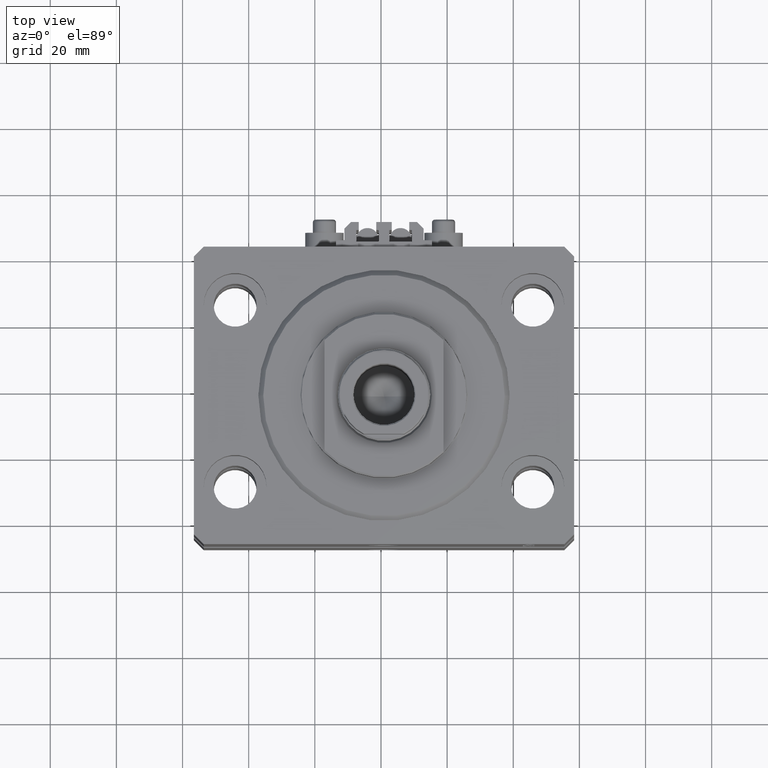
[diagram: clean part render]
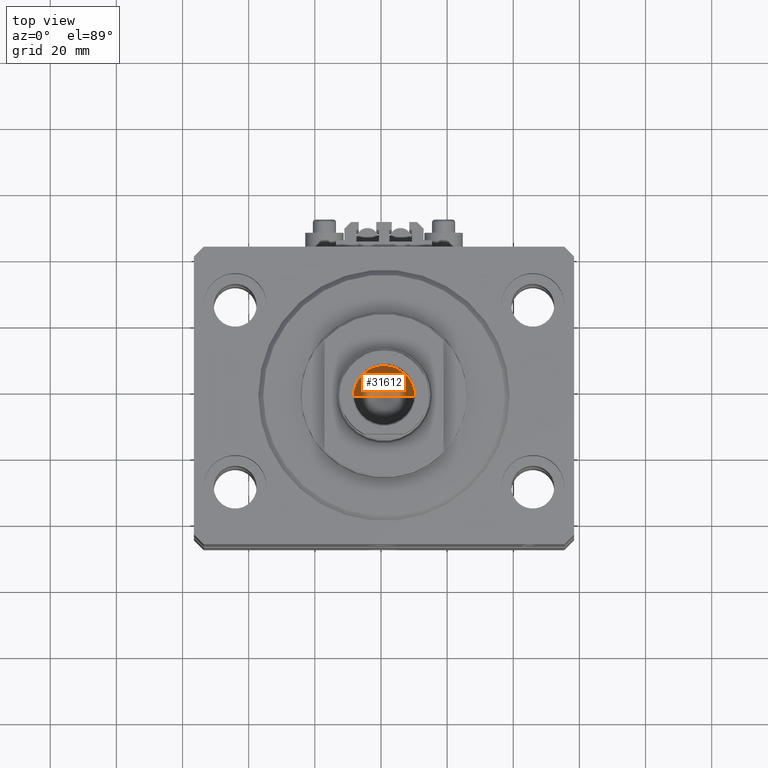
[diagram: same view with one face highlighted and labeled with its STEP entity id]
A machine part, top view. The second image highlights one B-rep face of the part: STEP entity #31612.
In plain terms, the highlighted conical surface has half-angle 59 deg.
Its self-contained STEP definition (entity closure, byte-faithful):
#2848 = VERTEX_POINT ( 'NONE', #23880 ) ;
#6779 = AXIS2_PLACEMENT_3D ( 'NONE', #15147, #30557, #33616 ) ;
#8392 = CIRCLE ( 'NONE', #36676, 9.249999999999994671 ) ;
#9191 = CONICAL_SURFACE ( 'NONE', #6779, 9.249999999999994671, 1.029744258676653423 ) ;
#9334 = VECTOR ( 'NONE', #34368, 1000.000000000000000 ) ;
#10228 = DIRECTION ( 'NONE',  ( 0.8571673007021117785, 0.000000000000000000, 0.5150380749100550437 ) ) ;
#10312 = EDGE_LOOP ( 'NONE', ( #41237, #39677, #10976 ) ) ;
#10976 = ORIENTED_EDGE ( 'NONE', *, *, #32013, .T. ) ;
#11547 = VERTEX_POINT ( 'NONE', #39572 ) ;
#12286 = CARTESIAN_POINT ( 'NONE',  ( 0.000000000000000000, 0.000000000000000000, 72.00000000000001421 ) ) ;
#15147 = CARTESIAN_POINT ( 'NONE',  ( 0.000000000000000000, 0.000000000000000000, 72.00000000000001421 ) ) ;
#15836 = DIRECTION ( 'NONE',  ( 1.000000000000000000, 0.000000000000000000, 0.000000000000000000 ) ) ;
#17387 = EDGE_CURVE ( 'NONE', #41626, #2848, #48928, .T. ) ;
#22234 = FACE_OUTER_BOUND ( 'NONE', #10312, .T. ) ;
#23880 = CARTESIAN_POINT ( 'NONE',  ( 9.249999999999994671, 0.000000000000000000, 72.00000000000001421 ) ) ;
#24792 = VECTOR ( 'NONE', #10228, 1000.000000000000000 ) ;
#24988 = CARTESIAN_POINT ( 'NONE',  ( -1.046994375366439223E-14, 0.000000000000000000, 66.44203927399506426 ) ) ;
#29430 = CARTESIAN_POINT ( 'NONE',  ( 9.249999999999994671, 0.000000000000000000, 72.00000000000001421 ) ) ;
#30557 = DIRECTION ( 'NONE',  ( -0.000000000000000000, -0.000000000000000000, 1.000000000000000000 ) ) ;
#31001 = DIRECTION ( 'NONE',  ( -0.000000000000000000, -0.000000000000000000, 1.000000000000000000 ) ) ;
#31612 = ADVANCED_FACE ( 'NONE', ( #22234 ), #9191, .F. ) ;
#32013 = EDGE_CURVE ( 'NONE', #2848, #11547, #8392, .T. ) ;
#33616 = DIRECTION ( 'NONE',  ( 1.000000000000000000, 0.000000000000000000, 0.000000000000000000 ) ) ;
#34116 = LINE ( 'NONE', #49561, #9334 ) ;
#34368 = DIRECTION ( 'NONE',  ( -0.8571673007021117785, 1.049727191138617956E-16, 0.5150380749100550437 ) ) ;
#35532 = EDGE_CURVE ( 'NONE', #41626, #11547, #34116, .T. ) ;
#36676 = AXIS2_PLACEMENT_3D ( 'NONE', #12286, #31001, #15836 ) ;
#39572 = CARTESIAN_POINT ( 'NONE',  ( -9.249999999999994671, 1.132798289211300909E-15, 72.00000000000001421 ) ) ;
#39677 = ORIENTED_EDGE ( 'NONE', *, *, #17387, .T. ) ;
#41237 = ORIENTED_EDGE ( 'NONE', *, *, #35532, .F. ) ;
#41626 = VERTEX_POINT ( 'NONE', #24988 ) ;
#48928 = LINE ( 'NONE', #29430, #24792 ) ;
#49561 = CARTESIAN_POINT ( 'NONE',  ( -9.249999999999994671, 1.132798289211300909E-15, 72.00000000000001421 ) ) ;